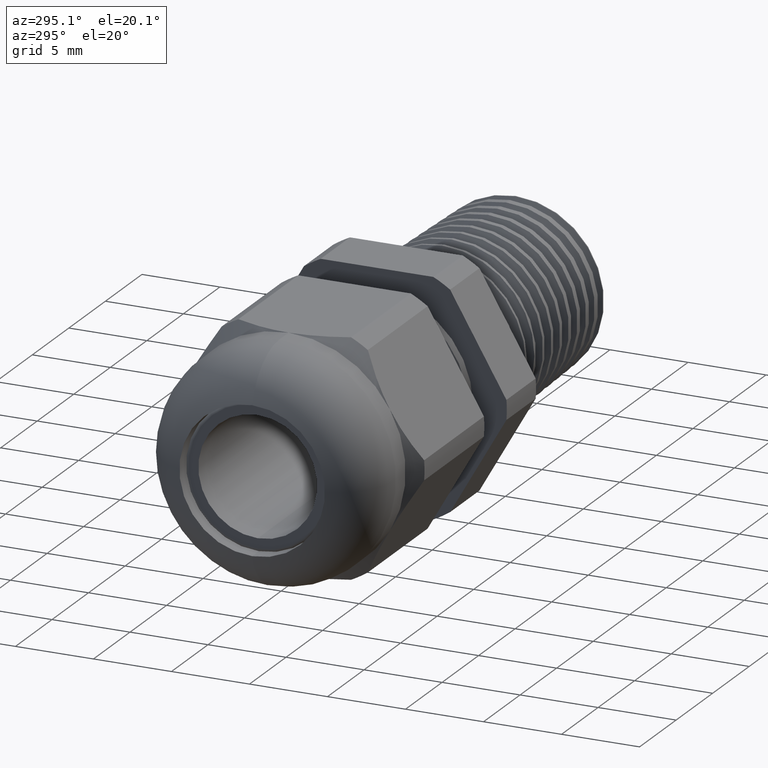
[diagram: clean part render]
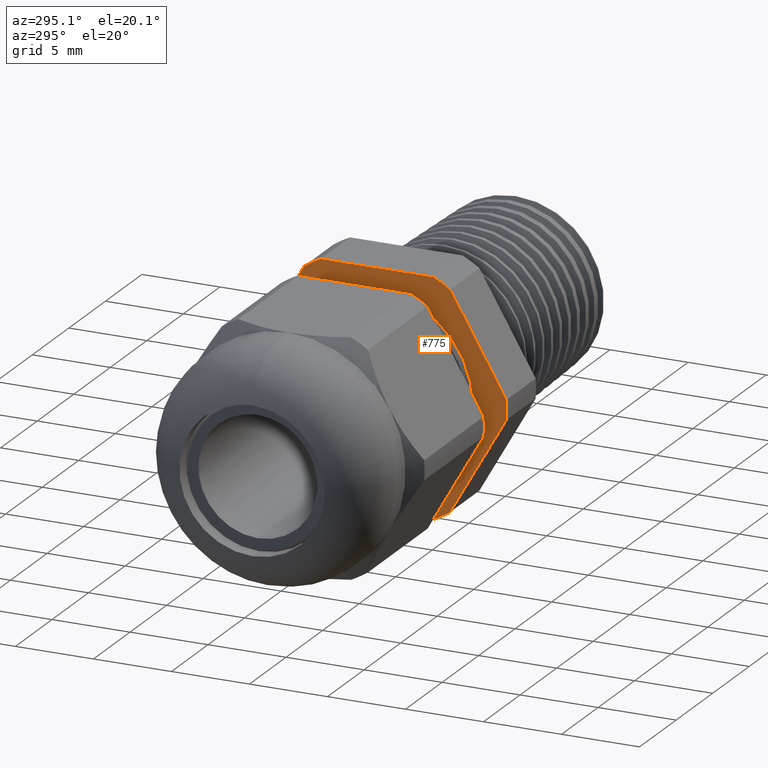
[diagram: same view with one face highlighted and labeled with its STEP entity id]
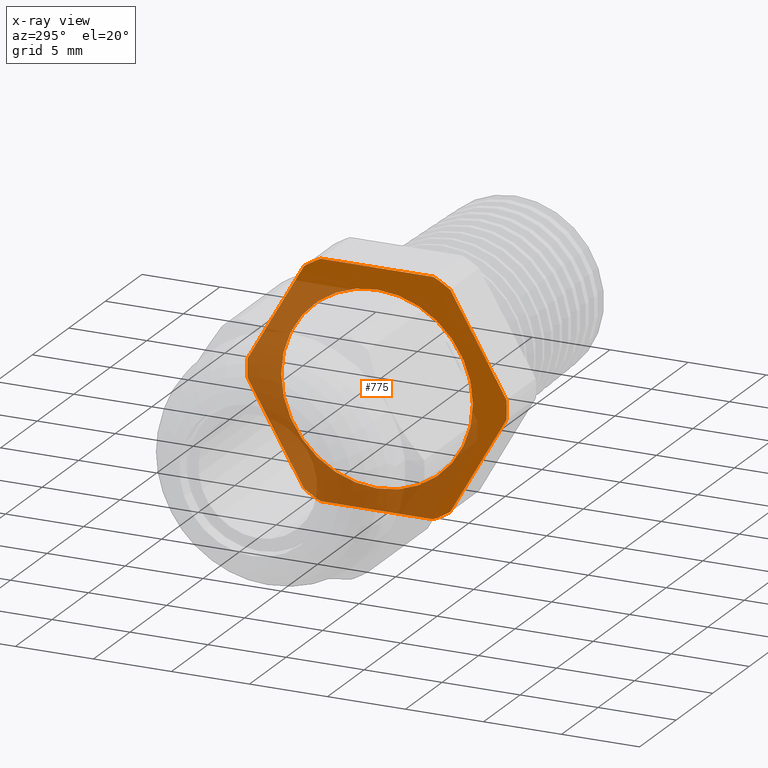
[diagram: x-ray of the same camera — body ghosted, the highlighted face saturated]
A machine part, auxiliary view. The second image highlights one B-rep face of the part: STEP entity #775.
The next image is the same camera in x-ray: the body ghosted, the highlighted face saturated — about 55% of this face is hidden behind the body in this view.
In plain terms, the highlighted planar face has unit normal (-1, 0, 0).
Its self-contained STEP definition (entity closure, byte-faithful):
#351 = VERTEX_POINT ( 'NONE', #2053 ) ;
#716 = EDGE_CURVE ( 'NONE', #1035, #1081, #2633, .T. ) ;
#750 = EDGE_CURVE ( 'NONE', #831, #751, #2721, .T. ) ;
#751 = VERTEX_POINT ( 'NONE', #2716 ) ;
#752 = ORIENTED_EDGE ( 'NONE', *, *, #753, .T. ) ;
#753 = EDGE_CURVE ( 'NONE', #751, #754, #2715, .T. ) ;
#754 = VERTEX_POINT ( 'NONE', #2711 ) ;
#755 = ORIENTED_EDGE ( 'NONE', *, *, #756, .T. ) ;
#756 = EDGE_CURVE ( 'NONE', #754, #782, #2709, .T. ) ;
#760 = ORIENTED_EDGE ( 'NONE', *, *, #761, .T. ) ;
#761 = EDGE_CURVE ( 'NONE', #789, #762, #2698, .T. ) ;
#762 = VERTEX_POINT ( 'NONE', #2694 ) ;
#763 = ORIENTED_EDGE ( 'NONE', *, *, #764, .T. ) ;
#764 = EDGE_CURVE ( 'NONE', #762, #765, #2693, .T. ) ;
#765 = VERTEX_POINT ( 'NONE', #2751 ) ;
#766 = ORIENTED_EDGE ( 'NONE', *, *, #767, .T. ) ;
#767 = EDGE_CURVE ( 'NONE', #765, #768, #2750, .T. ) ;
#768 = VERTEX_POINT ( 'NONE', #2745 ) ;
#769 = ORIENTED_EDGE ( 'NONE', *, *, #770, .T. ) ;
#770 = EDGE_CURVE ( 'NONE', #768, #771, #2744, .T. ) ;
#771 = VERTEX_POINT ( 'NONE', #2740 ) ;
#772 = ORIENTED_EDGE ( 'NONE', *, *, #773, .T. ) ;
#773 = EDGE_CURVE ( 'NONE', #771, #351, #2739, .T. ) ;
#775 = ADVANCED_FACE ( 'NONE', ( #2734, #2733 ), #2732, .T. ) ;
#776 = EDGE_LOOP ( 'NONE', ( #777, #778 ) ) ;
#777 = ORIENTED_EDGE ( 'NONE', *, *, #716, .T. ) ;
#778 = ORIENTED_EDGE ( 'NONE', *, *, #1034, .T. ) ;
#779 = EDGE_LOOP ( 'NONE', ( #780, #784, #787, #760, #763, #766, #769, #772, #829, #832, #752, #755 ) ) ;
#780 = ORIENTED_EDGE ( 'NONE', *, *, #781, .T. ) ;
#781 = EDGE_CURVE ( 'NONE', #782, #783, #2727, .T. ) ;
#782 = VERTEX_POINT ( 'NONE', #2723 ) ;
#783 = VERTEX_POINT ( 'NONE', #2722 ) ;
#784 = ORIENTED_EDGE ( 'NONE', *, *, #785, .T. ) ;
#785 = EDGE_CURVE ( 'NONE', #783, #786, #2786, .T. ) ;
#786 = VERTEX_POINT ( 'NONE', #2781 ) ;
#787 = ORIENTED_EDGE ( 'NONE', *, *, #788, .T. ) ;
#788 = EDGE_CURVE ( 'NONE', #786, #789, #2780, .T. ) ;
#789 = VERTEX_POINT ( 'NONE', #2776 ) ;
#829 = ORIENTED_EDGE ( 'NONE', *, *, #830, .T. ) ;
#830 = EDGE_CURVE ( 'NONE', #351, #831, #2787, .T. ) ;
#831 = VERTEX_POINT ( 'NONE', #2848 ) ;
#832 = ORIENTED_EDGE ( 'NONE', *, *, #750, .T. ) ;
#1034 = EDGE_CURVE ( 'NONE', #1081, #1035, #3123, .T. ) ;
#1035 = VERTEX_POINT ( 'NONE', #3118 ) ;
#1081 = VERTEX_POINT ( 'NONE', #3221 ) ;
#2053 = CARTESIAN_POINT ( 'NONE',  ( -0.4674799999999997300, -0.3265382119920402500, 0.02441922621708947700 ) ) ;
#2633 = CIRCLE ( 'NONE', #2690, 0.2418226291431660200 ) ;
#2687 = DIRECTION ( 'NONE',  ( 0.0000000000000000000, 0.0000000000000000000, -1.000000000000000000 ) ) ;
#2688 = DIRECTION ( 'NONE',  ( 1.000000000000000000, 0.0000000000000000000, 0.0000000000000000000 ) ) ;
#2689 = CARTESIAN_POINT ( 'NONE',  ( -0.4674799999999999500, 0.0000000000000000000, 0.0000000000000000000 ) ) ;
#2690 = AXIS2_PLACEMENT_3D ( 'NONE', #2689, #2688, #2687 ) ;
#2692 = CARTESIAN_POINT ( 'NONE',  ( -0.4674800000000000100, 0.5900000000000000800, -0.2950000000000001000 ) ) ;
#2693 = LINE ( 'NONE', #2692, #2753 ) ;
#2694 = CARTESIAN_POINT ( 'NONE',  ( -0.4674799999999997300, 0.1421214357512616000, -0.2950000000000000400 ) ) ;
#2695 = DIRECTION ( 'NONE',  ( 0.0000000000000000000, 0.0000000000000000000, 1.000000000000000000 ) ) ;
#2696 = DIRECTION ( 'NONE',  ( -1.000000000000000000, 0.0000000000000000000, 0.0000000000000000000 ) ) ;
#2697 = AXIS2_PLACEMENT_3D ( 'NONE', #2703, #2696, #2695 ) ;
#2698 = CIRCLE ( 'NONE', #2697, 0.3274500000000000200 ) ;
#2703 = CARTESIAN_POINT ( 'NONE',  ( -0.4674800000000000100, 0.0000000000000000000, 0.0000000000000000000 ) ) ;
#2705 = DIRECTION ( 'NONE',  ( 0.0000000000000000000, 0.0000000000000000000, 1.000000000000000000 ) ) ;
#2706 = DIRECTION ( 'NONE',  ( -1.000000000000000000, 0.0000000000000000000, 0.0000000000000000000 ) ) ;
#2707 = CARTESIAN_POINT ( 'NONE',  ( -0.4674800000000000100, 0.0000000000000000000, 0.0000000000000000000 ) ) ;
#2708 = AXIS2_PLACEMENT_3D ( 'NONE', #2707, #2706, #2705 ) ;
#2709 = CIRCLE ( 'NONE', #2708, 0.3274499999999999600 ) ;
#2711 = CARTESIAN_POINT ( 'NONE',  ( -0.4674799999999997300, 0.1421214357512617400, 0.2949999999999999800 ) ) ;
#2712 = DIRECTION ( 'NONE',  ( 0.0000000000000000000, 1.000000000000000000, 0.0000000000000000000 ) ) ;
#2713 = VECTOR ( 'NONE', #2712, 39.37007874015748100 ) ;
#2714 = CARTESIAN_POINT ( 'NONE',  ( -0.4674800000000000100, 0.5900000000000000800, 0.2949999999999999800 ) ) ;
#2715 = LINE ( 'NONE', #2714, #2713 ) ;
#2716 = CARTESIAN_POINT ( 'NONE',  ( -0.4674799999999997300, -0.1421214357512617700, 0.2949999999999999800 ) ) ;
#2717 = DIRECTION ( 'NONE',  ( 0.0000000000000000000, 0.0000000000000000000, 1.000000000000000000 ) ) ;
#2718 = DIRECTION ( 'NONE',  ( -1.000000000000000000, 0.0000000000000000000, 0.0000000000000000000 ) ) ;
#2719 = CARTESIAN_POINT ( 'NONE',  ( -0.4674800000000000100, 0.0000000000000000000, 0.0000000000000000000 ) ) ;
#2720 = AXIS2_PLACEMENT_3D ( 'NONE', #2719, #2718, #2717 ) ;
#2721 = CIRCLE ( 'NONE', #2720, 0.3274500000000000200 ) ;
#2722 = CARTESIAN_POINT ( 'NONE',  ( -0.4674799999999997300, 0.3265382119920401900, 0.02441922621708981000 ) ) ;
#2723 = CARTESIAN_POINT ( 'NONE',  ( -0.4674799999999997300, 0.1844167762407788200, 0.2705807737829102900 ) ) ;
#2724 = DIRECTION ( 'NONE',  ( 0.0000000000000000000, 0.5000000000000002200, -0.8660254037844386000 ) ) ;
#2725 = VECTOR ( 'NONE', #2724, 39.37007874015747400 ) ;
#2726 = CARTESIAN_POINT ( 'NONE',  ( -0.4674800000000000100, 0.4029774941164095400, -0.1079774941164093800 ) ) ;
#2727 = LINE ( 'NONE', #2726, #2725 ) ;
#2728 = DIRECTION ( 'NONE',  ( 0.0000000000000000000, 0.0000000000000000000, 1.000000000000000000 ) ) ;
#2729 = DIRECTION ( 'NONE',  ( -1.000000000000000000, 0.0000000000000000000, 0.0000000000000000000 ) ) ;
#2730 = CARTESIAN_POINT ( 'NONE',  ( -0.4674800000000000100, 0.5900000000000000800, 0.0000000000000000000 ) ) ;
#2731 = AXIS2_PLACEMENT_3D ( 'NONE', #2730, #2729, #2728 ) ;
#2732 = PLANE ( 'NONE',  #2731 ) ;
#2733 = FACE_OUTER_BOUND ( 'NONE', #779, .T. ) ;
#2734 = FACE_BOUND ( 'NONE', #776, .T. ) ;
#2735 = DIRECTION ( 'NONE',  ( 0.0000000000000000000, 0.0000000000000000000, 1.000000000000000000 ) ) ;
#2736 = DIRECTION ( 'NONE',  ( -1.000000000000000000, 0.0000000000000000000, 0.0000000000000000000 ) ) ;
#2737 = CARTESIAN_POINT ( 'NONE',  ( -0.4674800000000000100, 0.0000000000000000000, 0.0000000000000000000 ) ) ;
#2738 = AXIS2_PLACEMENT_3D ( 'NONE', #2737, #2736, #2735 ) ;
#2739 = CIRCLE ( 'NONE', #2738, 0.3274500000000000200 ) ;
#2740 = CARTESIAN_POINT ( 'NONE',  ( -0.4674799999999997300, -0.3265382119920402500, -0.02441922621708977500 ) ) ;
#2741 = DIRECTION ( 'NONE',  ( 0.0000000000000000000, -0.5000000000000002200, 0.8660254037844386000 ) ) ;
#2742 = VECTOR ( 'NONE', #2741, 39.37007874015747400 ) ;
#2743 = CARTESIAN_POINT ( 'NONE',  ( -0.4674800000000000100, -0.1079774941164094900, -0.4029774941164097100 ) ) ;
#2744 = LINE ( 'NONE', #2743, #2742 ) ;
#2745 = CARTESIAN_POINT ( 'NONE',  ( -0.4674799999999997300, -0.1844167762407786500, -0.2705807737829104600 ) ) ;
#2746 = DIRECTION ( 'NONE',  ( 0.0000000000000000000, 0.0000000000000000000, 1.000000000000000000 ) ) ;
#2747 = DIRECTION ( 'NONE',  ( -1.000000000000000000, 0.0000000000000000000, 0.0000000000000000000 ) ) ;
#2748 = CARTESIAN_POINT ( 'NONE',  ( -0.4674800000000000100, 0.0000000000000000000, 0.0000000000000000000 ) ) ;
#2749 = AXIS2_PLACEMENT_3D ( 'NONE', #2748, #2747, #2746 ) ;
#2750 = CIRCLE ( 'NONE', #2749, 0.3274500000000000200 ) ;
#2751 = CARTESIAN_POINT ( 'NONE',  ( -0.4674799999999997300, -0.1421214357512615400, -0.2950000000000001000 ) ) ;
#2752 = DIRECTION ( 'NONE',  ( 0.0000000000000000000, -1.000000000000000000, 0.0000000000000000000 ) ) ;
#2753 = VECTOR ( 'NONE', #2752, 39.37007874015748100 ) ;
#2776 = CARTESIAN_POINT ( 'NONE',  ( -0.4674800000000000100, 0.1844167762407789300, -0.2705807737829101800 ) ) ;
#2777 = DIRECTION ( 'NONE',  ( 0.0000000000000000000, -0.4999999999999998300, -0.8660254037844388200 ) ) ;
#2778 = VECTOR ( 'NONE', #2777, 39.37007874015748100 ) ;
#2779 = CARTESIAN_POINT ( 'NONE',  ( -0.4674800000000000100, 0.4029774941164094300, 0.1079774941164093300 ) ) ;
#2780 = LINE ( 'NONE', #2779, #2778 ) ;
#2781 = CARTESIAN_POINT ( 'NONE',  ( -0.4674799999999997300, 0.3265382119920401900, -0.02441922621708981700 ) ) ;
#2782 = DIRECTION ( 'NONE',  ( 0.0000000000000000000, 0.0000000000000000000, 1.000000000000000000 ) ) ;
#2783 = DIRECTION ( 'NONE',  ( -1.000000000000000000, 0.0000000000000000000, 0.0000000000000000000 ) ) ;
#2784 = CARTESIAN_POINT ( 'NONE',  ( -0.4674800000000000100, 0.0000000000000000000, 0.0000000000000000000 ) ) ;
#2785 = AXIS2_PLACEMENT_3D ( 'NONE', #2784, #2783, #2782 ) ;
#2786 = CIRCLE ( 'NONE', #2785, 0.3274499999999999600 ) ;
#2787 = LINE ( 'NONE', #2851, #2850 ) ;
#2848 = CARTESIAN_POINT ( 'NONE',  ( -0.4674799999999997300, -0.1844167762407789300, 0.2705807737829102900 ) ) ;
#2849 = DIRECTION ( 'NONE',  ( 0.0000000000000000000, 0.4999999999999998300, 0.8660254037844388200 ) ) ;
#2850 = VECTOR ( 'NONE', #2849, 39.37007874015748100 ) ;
#2851 = CARTESIAN_POINT ( 'NONE',  ( -0.4674800000000000100, -0.1079774941164096300, 0.4029774941164093700 ) ) ;
#3118 = CARTESIAN_POINT ( 'NONE',  ( -0.4674799999999999500, 0.0000000000000000000, 0.2418226291431660200 ) ) ;
#3119 = DIRECTION ( 'NONE',  ( 0.0000000000000000000, 0.0000000000000000000, -1.000000000000000000 ) ) ;
#3120 = DIRECTION ( 'NONE',  ( 1.000000000000000000, 0.0000000000000000000, 0.0000000000000000000 ) ) ;
#3121 = CARTESIAN_POINT ( 'NONE',  ( -0.4674799999999999500, 0.0000000000000000000, 0.0000000000000000000 ) ) ;
#3122 = AXIS2_PLACEMENT_3D ( 'NONE', #3121, #3120, #3119 ) ;
#3123 = CIRCLE ( 'NONE', #3122, 0.2418226291431660200 ) ;
#3221 = CARTESIAN_POINT ( 'NONE',  ( -0.4674799999999999500, 2.965634997273615500E-017, -0.2418226291431660200 ) ) ;